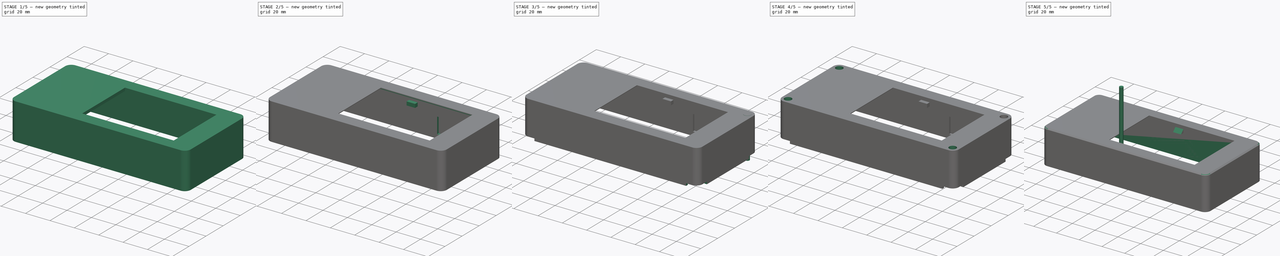
[diagram: build sequence overview — one tinted view per stage of 5, left to right]
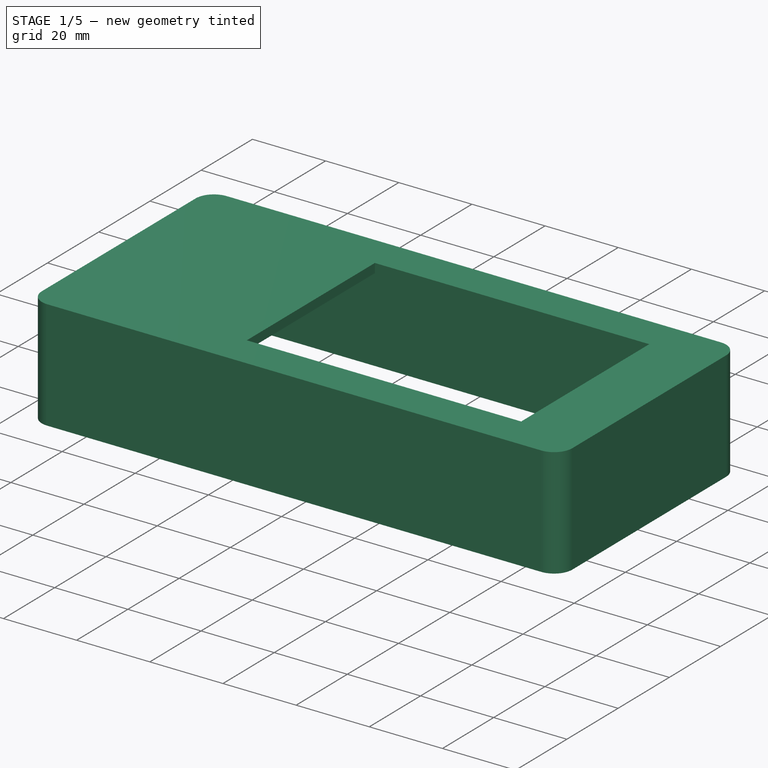
[diagram: stage 1 of 5 — iso view after this stage's code; geometry added in this stage tinted green]
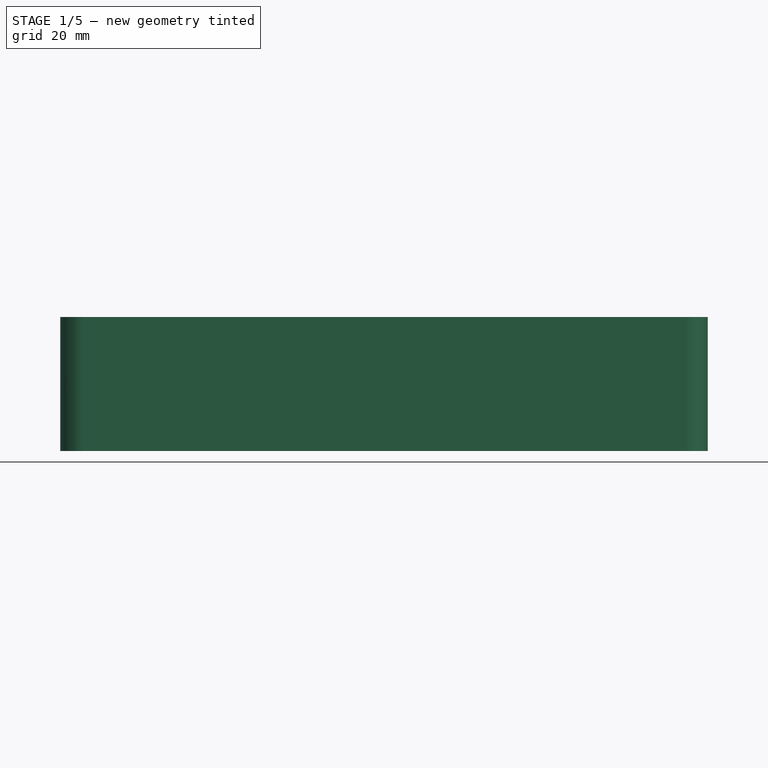
[diagram: stage 1 of 5 — front view after this stage's code; geometry added in this stage tinted green]
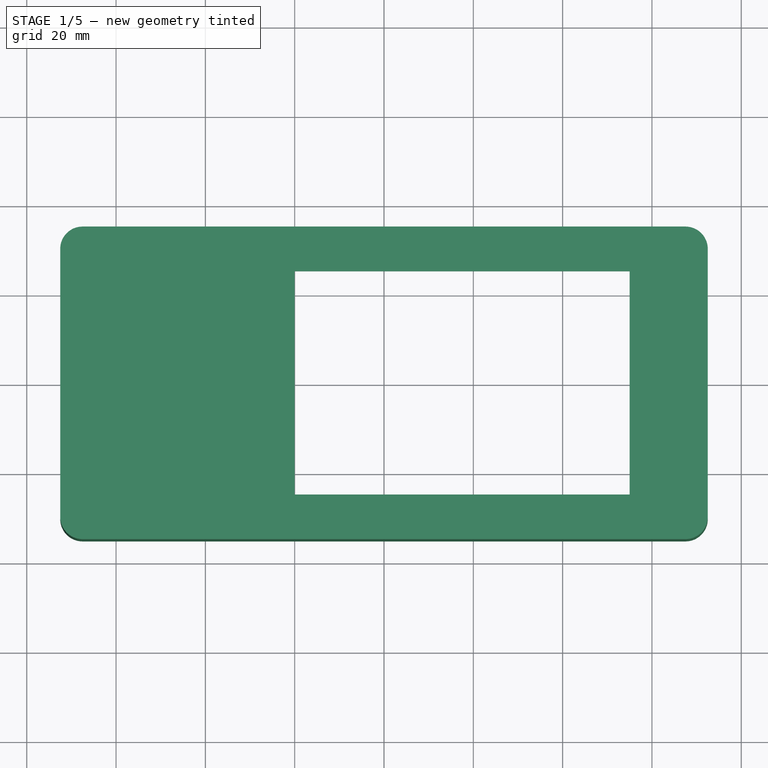
[diagram: stage 1 of 5 — top view after this stage's code; geometry added in this stage tinted green]
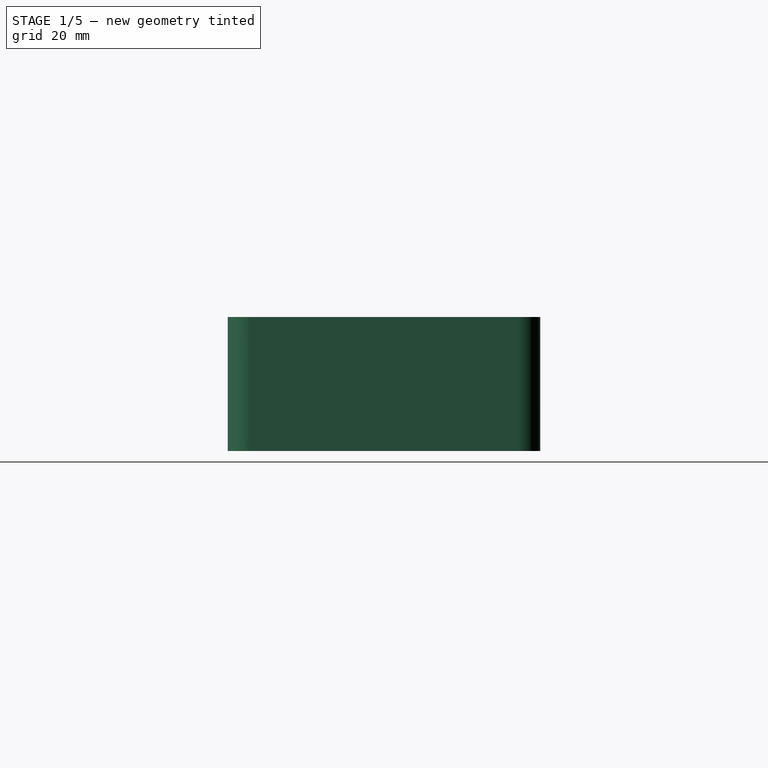
[diagram: stage 1 of 5 — right view after this stage's code; geometry added in this stage tinted green]
FCSTD DOCUMENT  (FreeCAD 0.16R6703 (Git))
Label: baroness
License: CC-BY 3.0
LicenseURL: http://creativecommons.org/licenses/by/3.0/
objects: Sketcher::SketchObject×12, PartDesign::Pocket×7, PartDesign::Pad×4, Part::FeaturePython×4, PartDesign::Chamfer×3, Part::Cylinder×1, PartDesign::Revolution×1, Part::MultiFuse×1, Part::Cut×1
note: 46 computed .brp shape members not serialized (recipe doc carries the construction recipe); baked Part::Feature solids carry a one-line shape summary decoded from their .brp

FEATURE [Sketcher::SketchObject] Sketch
  sketch-geometry (8):
    g0: LineSegment StartX=-67.5 StartY=-35 StartZ=0 EndX=67.5 EndY=-35 EndZ=0
    g1: LineSegment StartX=72.5 StartY=-30 StartZ=0 EndX=72.5 EndY=30 EndZ=0
    g2: LineSegment StartX=67.5 StartY=35 StartZ=0 EndX=-67.5 EndY=35 EndZ=0
    g3: LineSegment StartX=-72.5 StartY=30 StartZ=0 EndX=-72.5 EndY=-30 EndZ=0
    g4: ArcOfCircle CenterX=-67.5 CenterY=30 CenterZ=0 NormalX=0 NormalY=0 NormalZ=1 Radius=5 StartAngle=1.5708 EndAngle=3.14159
    g5: ArcOfCircle CenterX=-67.5 CenterY=-30 CenterZ=0 NormalX=0 NormalY=0 NormalZ=1 Radius=5 StartAngle=3.14159 EndAngle=4.71239
    g6: ArcOfCircle CenterX=67.5 CenterY=-30 CenterZ=0 NormalX=0 NormalY=0 NormalZ=1 Radius=5 StartAngle=4.71239 EndAngle=6.28319
    g7: ArcOfCircle CenterX=67.5 CenterY=30 CenterZ=0 NormalX=0 NormalY=0 NormalZ=1 Radius=5 StartAngle=0 EndAngle=1.5708
  constraints (19):
    c: Horizontal(g0)
    c: Horizontal(g2)
    c: Vertical(g1)
    c: Vertical(g3)
    c: Tangent(g2,g4)
    c: Tangent(g3,g4)
    c: Tangent(g0,g5)
    c: Tangent(g3,g5)
    c: Tangent(g0,g6)
    c: Tangent(g1,g6)
    c: Tangent(g1,g7)
    c: Tangent(g2,g7)
    c: Radius(g4) = 5
    c: Radius(g6) = 5
    c: Radius(g7) = 5
    c: DistanceY(g0,g2) = 70
    c: DistanceX(g3,g1) = 145
    c: Symmetric(g2,g0,g-1)
    c: Symmetric(g1,g3,g-2)
FEATURE [PartDesign::Pad] Pad
  Length = 30
  Length2 = 100
  Reversed = true
  Sketch = -> Sketch
  Type = 0
FEATURE [Sketcher::SketchObject] Sketch001
  Placement = pos=(0,0,-30) rot=(1,0,0;3.14159rad)
  Support = -> Pad [Face10]
  sketch-geometry (4):
    g0: LineSegment StartX=-20 StartY=25 StartZ=0 EndX=55 EndY=25 EndZ=0
    g1: LineSegment StartX=55 StartY=25 StartZ=0 EndX=55 EndY=-25 EndZ=0
    g2: LineSegment StartX=55 StartY=-25 StartZ=0 EndX=-20 EndY=-25 EndZ=0
    g3: LineSegment StartX=-20 StartY=-25 StartZ=0 EndX=-20 EndY=25 EndZ=0
  constraints (12):
    c: Coincident(g0,g1)
    c: Coincident(g1,g2)
    c: Coincident(g2,g3)
    c: Coincident(g3,g0)
    c: Horizontal(g0)
    c: Horizontal(g2)
    c: Vertical(g1)
    c: Vertical(g3)
    c: DistanceY(g3) = 50
    c: DistanceX(g0) = 75
    c: DistanceX(g-1,g2) = -20
    c: Symmetric(g2,g0,g-1)
FEATURE [PartDesign::Pocket] Pocket  label="inner_d"
  Length = 5
  Sketch = -> Sketch001
  Type = 1
FEATURE [Sketcher::SketchObject] Sketch002
  ExternalGeometry = -> [Pocket]
  Placement = pos=(0,0,-30) rot=(1,0,0;3.14159rad)
  Support = -> Pocket [Face5]
  sketch-geometry (9):
    g0: LineSegment StartX=72.5 StartY=-28 StartZ=0 EndX=72.5 EndY=-28 EndZ=0
    g1: LineSegment StartX=-67.5 StartY=33 StartZ=0 EndX=67.5 EndY=33 EndZ=0
    g2: LineSegment StartX=70.5 StartY=30 StartZ=0 EndX=70.5 EndY=-30 EndZ=0
    g3: LineSegment StartX=67.5 StartY=-33 StartZ=0 EndX=-67.5 EndY=-33 EndZ=0
    g4: LineSegment StartX=-70.5 StartY=-30 StartZ=0 EndX=-70.5 EndY=30 EndZ=0
    g5: ArcOfCircle CenterX=-67.5 CenterY=30 CenterZ=0 NormalX=0 NormalY=0 NormalZ=1 Radius=3 StartAngle=1.5708 EndAngle=3.14159
    g6: ArcOfCircle CenterX=67.5 CenterY=30 CenterZ=0 NormalX=0 NormalY=0 NormalZ=1 Radius=3 StartAngle=0 EndAngle=1.5708
    g7: ArcOfCircle CenterX=67.5 CenterY=-30 CenterZ=0 NormalX=0 NormalY=0 NormalZ=1 Radius=3 StartAngle=4.71239 EndAngle=6.28319
    g8: ArcOfCircle CenterX=-67.5 CenterY=-30 CenterZ=0 NormalX=0 NormalY=0 NormalZ=1 Radius=3 StartAngle=3.14159 EndAngle=4.71239
  constraints (22):
    c: Horizontal(g0)
    c: DistanceY(g0,g-6) = -2
    c: DistanceX(g0,g-6) = 0
    c: DistanceX(g0,g-4) = 0
    c: Horizontal(g1)
    c: Horizontal(g3)
    c: Vertical(g2)
    c: Vertical(g4)
    c: Tangent(g1,g5)
    c: Tangent(g4,g5)
    c: Tangent(g1,g6)
    c: Tangent(g2,g6)
    c: Tangent(g2,g7)
    c: Tangent(g3,g7)
    c: Tangent(g3,g8)
    c: Tangent(g4,g8)
    c: Radius(g5) = 3
    c: Radius(g6) = 3
    c: Radius(g8) = 3
    c: Radius(g7) = 3
    c: Coincident(g-5,g5)
    c: Coincident(g7,g-6)
FEATURE [PartDesign::Pocket] Pocket001  label="big_hole"
  Length = 27.5
  Sketch = -> Sketch002
  Type = 0
  UpToFace = -> Pocket [Face4]
FEATURE [Sketcher::SketchObject] Sketch003
  Placement = pos=(0,0,-2.5) rot=(1,0,0;3.14159rad)
  Support = -> Pocket001 [Face23]
  sketch-geometry (4):
    g0: LineSegment StartX=-64 StartY=28 StartZ=0 EndX=-24 EndY=28 EndZ=0
    g1: LineSegment StartX=-24 StartY=28 StartZ=0 EndX=-24 EndY=-32.5 EndZ=0
    g2: LineSegment StartX=-24 StartY=-32.5 StartZ=0 EndX=-64 EndY=-32.5 EndZ=0
    g3: LineSegment StartX=-64 StartY=-32.5 StartZ=0 EndX=-64 EndY=28 EndZ=0
  constraints (12):
    c: Coincident(g0,g1)
    c: Coincident(g1,g2)
    c: Coincident(g2,g3)
    c: Coincident(g3,g0)
    c: Horizontal(g0)
    c: Horizontal(g2)
    c: Vertical(g1)
    c: Vertical(g3)
    c: DistanceX(g0,g0) = 40
    c: DistanceY(g2,g0) = 60.5
    c: DistanceX(g-1,g0) = -64
    c: DistanceY(g-1,g0) = 28
FEATURE [PartDesign::Pocket] Pocket002  label="rfid_d"
  Length = 2.5
  Midplane = true
  Sketch = -> Sketch003
  Type = 0
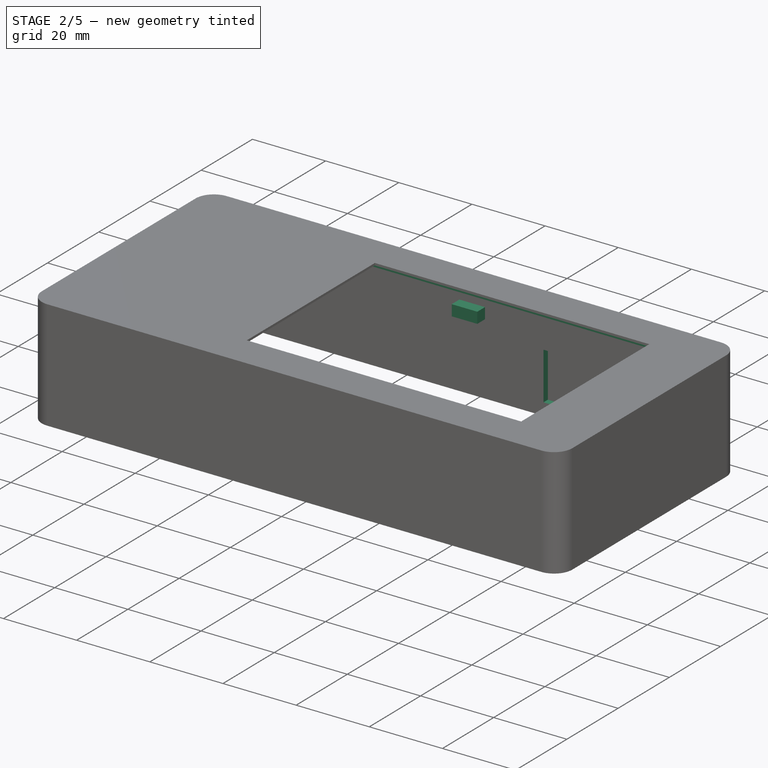
[diagram: stage 2 of 5 — iso view after this stage's code; geometry added in this stage tinted green]
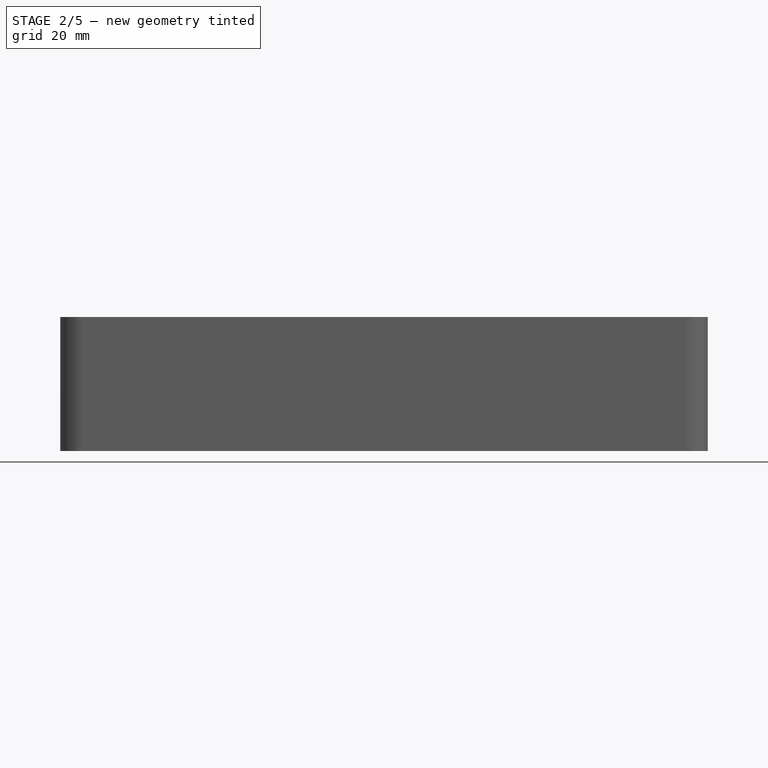
[diagram: stage 2 of 5 — front view after this stage's code; geometry added in this stage tinted green]
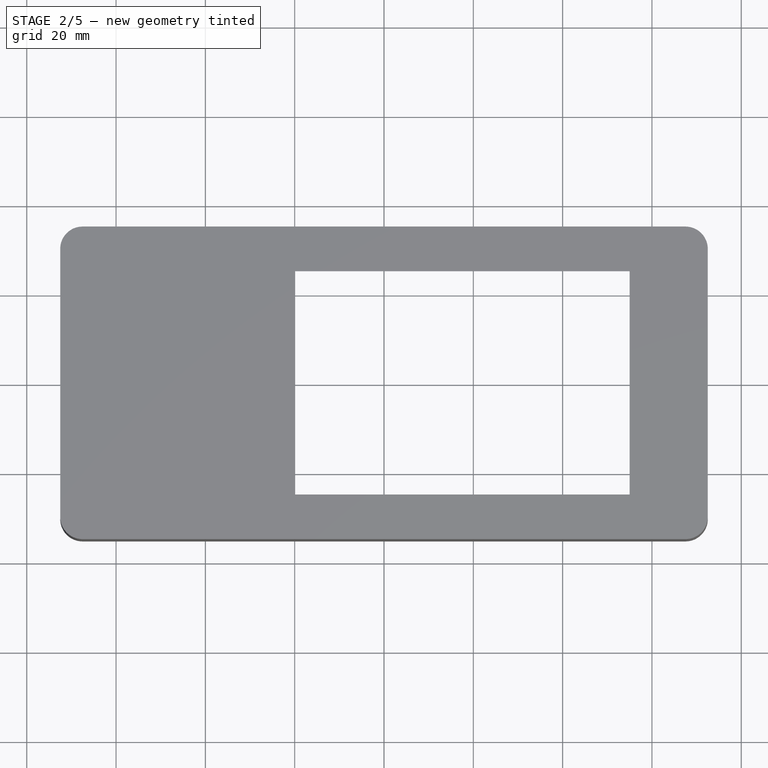
[diagram: stage 2 of 5 — top view after this stage's code; geometry added in this stage tinted green]
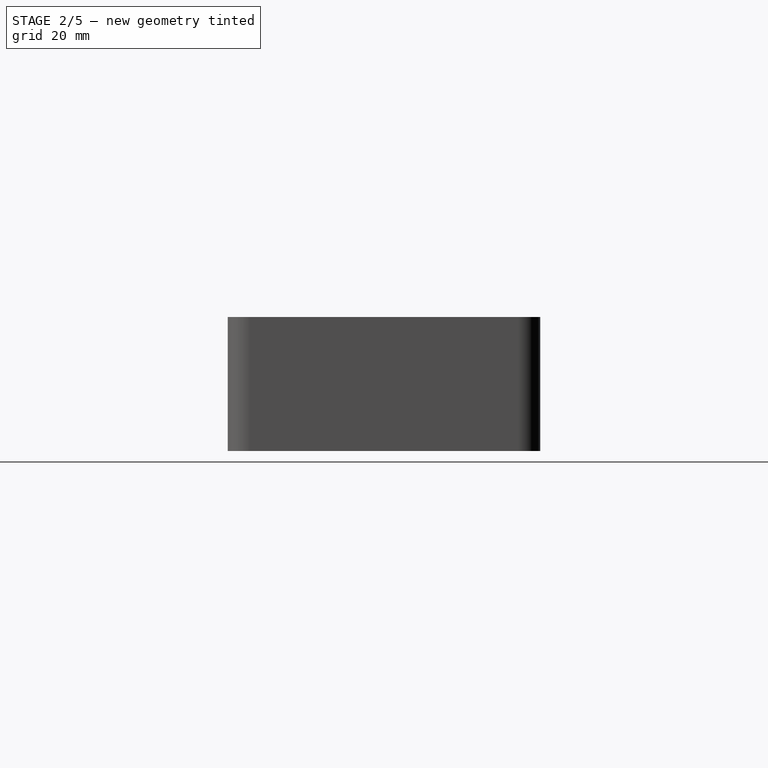
[diagram: stage 2 of 5 — right view after this stage's code; geometry added in this stage tinted green]
FEATURE [Sketcher::SketchObject] Sketch006
  ExternalGeometry = -> [Pocket002]
  Placement = pos=(0,0,-2.5) rot=(1,0,0;3.14159rad)
  Support = -> Pocket002 [Face23]
  sketch-geometry (4):
    g0: LineSegment StartX=-22.7 StartY=-27.6 StartZ=0 EndX=63 EndY=-27.6 EndZ=0
    g1: LineSegment StartX=63 StartY=-27.6 StartZ=0 EndX=63 EndY=27.6 EndZ=0
    g2: LineSegment StartX=63 StartY=27.6 StartZ=0 EndX=-22.7 EndY=27.6 EndZ=0
    g3: LineSegment StartX=-22.7 StartY=27.6 StartZ=0 EndX=-22.7 EndY=-27.6 EndZ=0
  constraints (12):
    c: Coincident(g0,g1)
    c: Coincident(g0,g3)
    c: Coincident(g1,g2)
    c: Coincident(g2,g3)
    c: Horizontal(g2)
    c: Horizontal(g0)
    c: Vertical(g3)
    c: Vertical(g1)
    c: DistanceY(g-8,g2) = 2.6
    c: DistanceY(g0,g-9) = 2.6
    c: DistanceX(g2,g-8) = 2.7
    c: DistanceX(g-10,g1) = 8
FEATURE [PartDesign::Pocket] Pocket005  label="display-senkung"
  Length = 1.9
  Sketch = -> Sketch006
  Type = 0
FEATURE [Sketcher::SketchObject] Sketch008
  ExternalGeometry = -> [Pocket005]
  Placement = pos=(0,33,0) rot=(1,0,0;1.5708rad)
  Support = -> Pocket005 [Face18]
  sketch-geometry (4):
    g0: LineSegment StartX=46.9 StartY=-19.1 StartZ=0 EndX=57.9 EndY=-19.1 EndZ=0
    g1: LineSegment StartX=57.9 StartY=-26.1 StartZ=0 EndX=46.9 EndY=-26.1 EndZ=0
    g2: LineSegment StartX=46.9 StartY=-26.1 StartZ=0 EndX=46.9 EndY=-19.1 EndZ=0
    g3: LineSegment StartX=57.9 StartY=-19.1 StartZ=0 EndX=57.9 EndY=-26.1 EndZ=0
  constraints (12):
    c: Coincident(g0,g2)
    c: Coincident(g0,g3)
    c: Coincident(g1,g2)
    c: Coincident(g1,g3)
    c: DistanceX(g1,g1) = 11
    c: DistanceY(g1,g0) = 7
    c: DistanceX(g0,g-3) = 5.1
    c: DistanceY(g0,g-3) = 18.5
    c: Vertical(g3)
    c: Vertical(g2)
    c: Horizontal(g0)
    c: Horizontal(g1)
FEATURE [PartDesign::Pocket] Pocket006
  Length = 4
  Sketch = -> Sketch008
  Type = 0
FEATURE [Sketcher::SketchObject] Sketch009
  ExternalGeometry = -> [Pocket006]
  Placement = pos=(0,33,0) rot=(1,0,0;1.5708rad)
  Support = -> Pocket006 [Face18]
  sketch-geometry (4):
    g0: LineSegment StartX=41.5 StartY=-13.65 StartZ=0 EndX=20.5 EndY=-13.65 EndZ=0
    g1: LineSegment StartX=20.5 StartY=-13.65 StartZ=0 EndX=20.5 EndY=-26.65 EndZ=0
    g2: LineSegment StartX=20.5 StartY=-26.65 StartZ=0 EndX=41.5 EndY=-26.65 EndZ=0
    g3: LineSegment StartX=41.5 StartY=-26.65 StartZ=0 EndX=41.5 EndY=-13.65 EndZ=0
  constraints (12):
    c: Horizontal(g2)
    c: Horizontal(g0)
    c: Vertical(g1)
    c: Vertical(g3)
    c: DistanceX(g0,g-3) = 21.5
    c: DistanceY(g0,g-3) = 11.15
    c: DistanceX(g2,g2) = 21
    c: DistanceY(g3,g3) = 13
    c: Coincident(g0,g1)
    c: Coincident(g1,g2)
    c: Coincident(g2,g3)
    c: Coincident(g0,g3)
FEATURE [PartDesign::Pocket] Pocket007
  Length = 1.7
  Sketch = -> Sketch009
  Type = 0
FEATURE [Sketcher::SketchObject] Sketch010
  Placement = pos=(0,33,0) rot=(1,0,0;1.5708rad)
  Support = -> Pocket007 [Face18]
  sketch-geometry (8):
    g0: LineSegment StartX=-2.5 StartY=-7.4 StartZ=0 EndX=4.5 EndY=-7.4 EndZ=0
    g1: LineSegment StartX=4.5 StartY=-7.4 StartZ=0 EndX=4.5 EndY=-10.4 EndZ=0
    g2: LineSegment StartX=4.5 StartY=-10.4 StartZ=0 EndX=-2.5 EndY=-10.4 EndZ=0
    g3: LineSegment StartX=-2.5 StartY=-10.4 StartZ=0 EndX=-2.5 EndY=-7.4 EndZ=0
    g4: LineSegment StartX=55.5 StartY=-7.4 StartZ=0 EndX=62.5 EndY=-7.4 EndZ=0
    g5: LineSegment StartX=62.5 StartY=-7.4 StartZ=0 EndX=62.5 EndY=-10.4 EndZ=0
    g6: LineSegment StartX=62.5 StartY=-10.4 StartZ=0 EndX=55.5 EndY=-10.4 EndZ=0
    g7: LineSegment StartX=55.5 StartY=-10.4 StartZ=0 EndX=55.5 EndY=-7.4 EndZ=0
  constraints (23):
    c: Coincident(g2,g3)
    c: Coincident(g1,g2)
    c: Coincident(g0,g1)
    c: Coincident(g5,g6)
    c: Coincident(g6,g7)
    c: Coincident(g4,g5)
    c: Coincident(g4,g7)
    c: Horizontal(g2)
    c: Horizontal(g0)
    c: Horizontal(g6)
    c: Horizontal(g4)
    c: Vertical(g3)
    c: Vertical(g1)
    c: Vertical(g7)
    c: Vertical(g5)
    c: DistanceY(g0,g-1) = 7.4
    c: DistanceX(g-1,g0) = 4.5
    c: DistanceY(g0,g4) = 0
    c: DistanceX(g0,g4) = 58
    c: Equal(g5,g1)
    c: Equal(g2,g6)
    c: DistanceX(g6,g6) = 7
    c: DistanceY(g5,g5) = 3
FEATURE [PartDesign::Pad] Pad001
  Length = 3
  Length2 = 100
  Sketch = -> Sketch010
  Type = 0
FEATURE [Sketcher::SketchObject] Sketch011
  Placement = pos=(0,-33,0) rot=(0,0.707107,0.707107;3.14159rad)
  Support = -> Pad001 [Face22]
  sketch-geometry (8):
    g0: LineSegment StartX=-62.5 StartY=-7.4 StartZ=0 EndX=-55.5 EndY=-7.4 EndZ=0
    g1: LineSegment StartX=-55.5 StartY=-7.4 StartZ=0 EndX=-55.5 EndY=-10.4 EndZ=0
    g2: LineSegment StartX=-55.5 StartY=-10.4 StartZ=0 EndX=-62.5 EndY=-10.4 EndZ=0
    g3: LineSegment StartX=-62.5 StartY=-10.4 StartZ=0 EndX=-62.5 EndY=-7.4 EndZ=0
    g4: LineSegment StartX=-4.5 StartY=-7.4 StartZ=0 EndX=2.5 EndY=-7.4 EndZ=0
    g5: LineSegment StartX=2.5 StartY=-7.4 StartZ=0 EndX=2.5 EndY=-10.4 EndZ=0
    g6: LineSegment StartX=2.5 StartY=-10.4 StartZ=0 EndX=-4.5 EndY=-10.4 EndZ=0
    g7: LineSegment StartX=-4.5 StartY=-10.4 StartZ=0 EndX=-4.5 EndY=-7.4 EndZ=0
  constraints (19):
    c: Coincident(g4,g5)
    c: Coincident(g5,g6)
    c: Coincident(g6,g7)
    c: Coincident(g4,g7)
    c: Coincident(g1,g2)
    c: Coincident(g0,g1)
    c: Coincident(g2,g3)
    c: Coincident(g0,g3)
    c: Horizontal(g2)
    c: Horizontal(g0)
    c: Horizontal(g6)
    c: Horizontal(g4)
    c: Vertical(g3)
    c: Vertical(g1)
    c: Vertical(g7)
    c: Vertical(g5)
    c: DistanceY(g4,g-1) = 7.4
    c: DistanceX(g-1,g4) = 2.5
    c: DistanceX(g0,g4) = 58
FEATURE [PartDesign::Pad] Pad002
  Length = 3
  Length2 = 100
  Sketch = -> Sketch011
  Type = 0
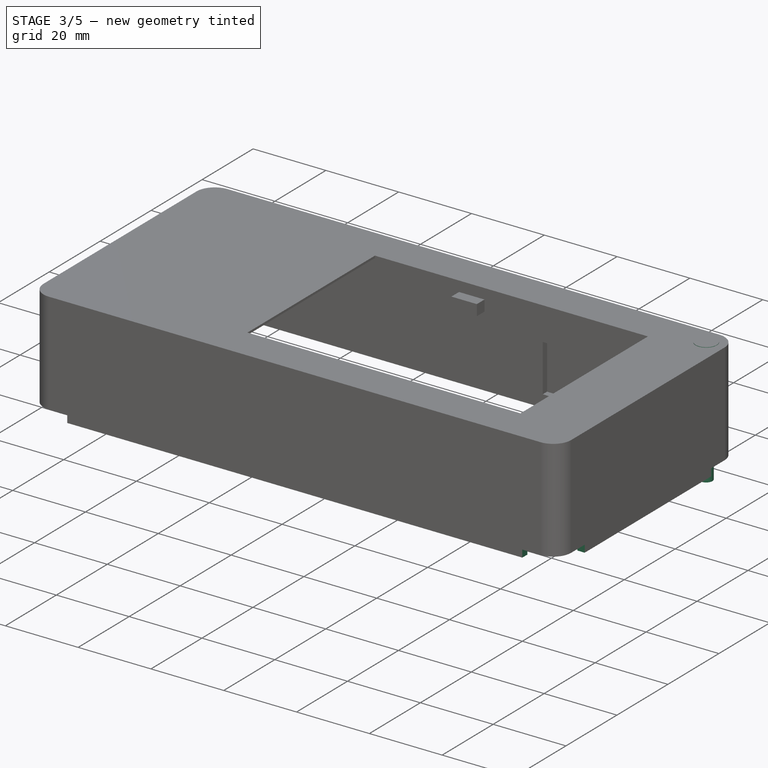
[diagram: stage 3 of 5 — iso view after this stage's code; geometry added in this stage tinted green]
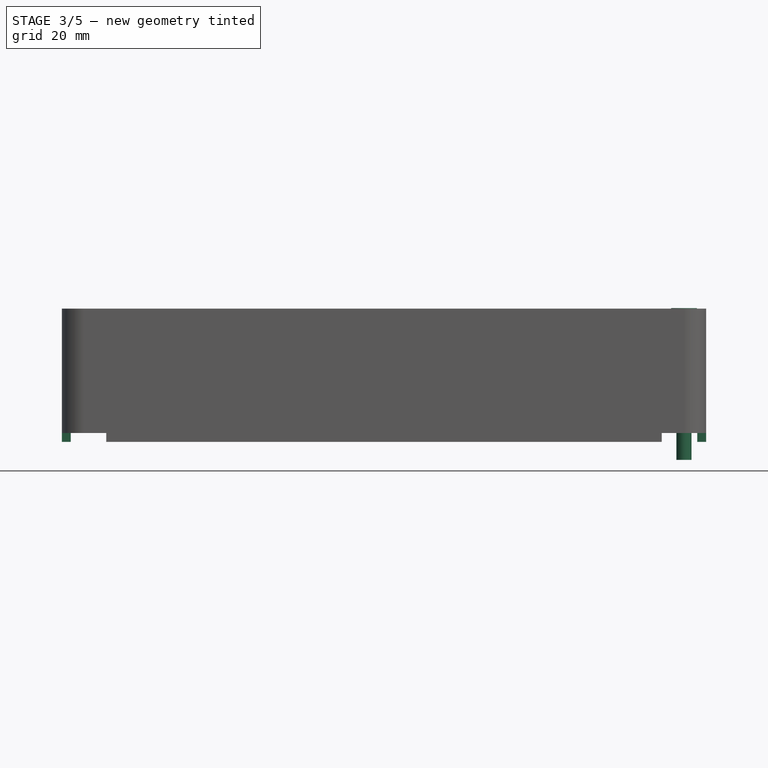
[diagram: stage 3 of 5 — front view after this stage's code; geometry added in this stage tinted green]
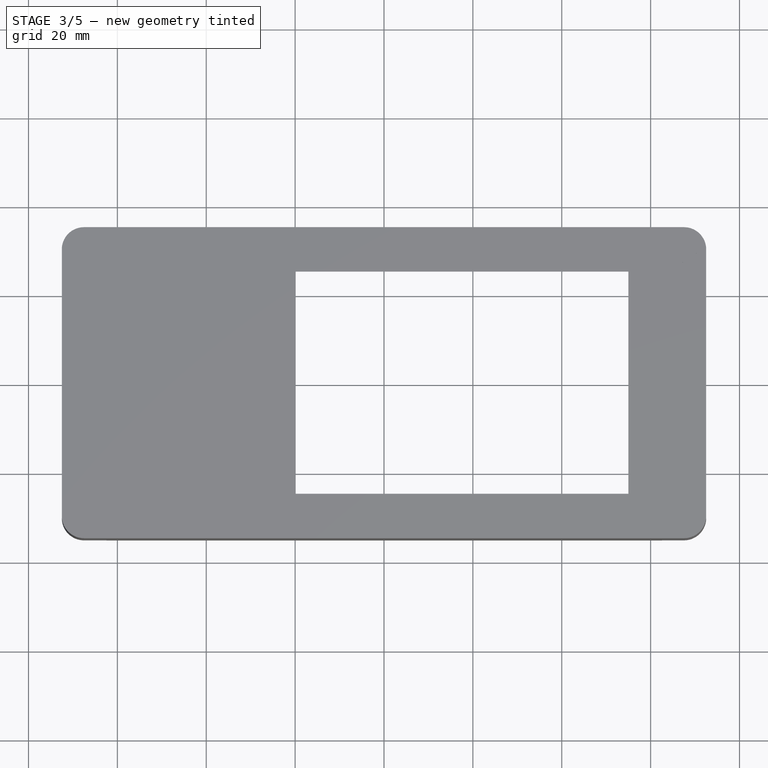
[diagram: stage 3 of 5 — top view after this stage's code; geometry added in this stage tinted green]
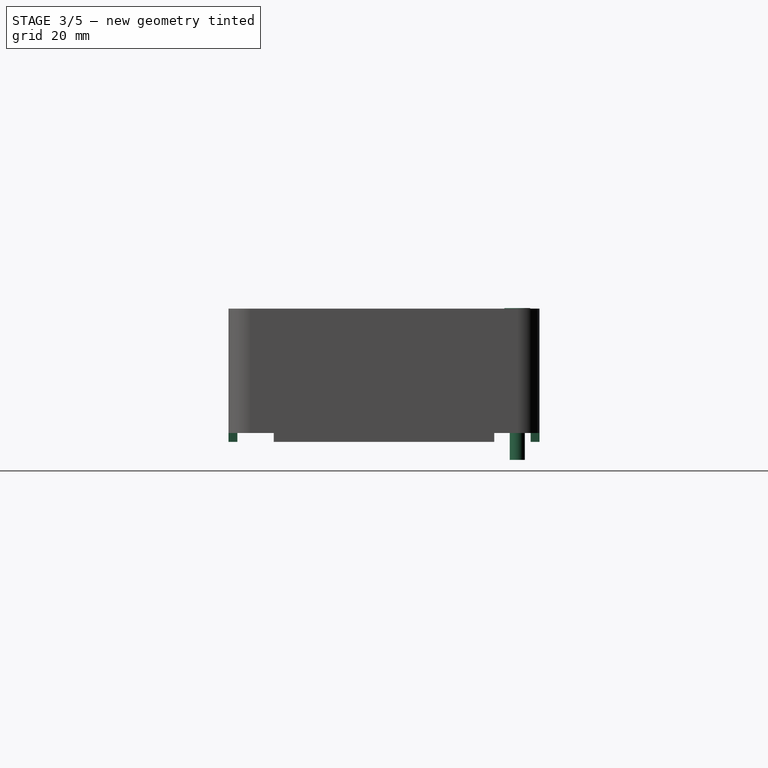
[diagram: stage 3 of 5 — right view after this stage's code; geometry added in this stage tinted green]
FEATURE [Sketcher::SketchObject] Sketch007
  Placement = pos=(0,0,0) rot=(1,0,0;1.5708rad)
  sketch-geometry (6):
    g0: LineSegment StartX=0 StartY=-34.05 StartZ=0 EndX=0 EndY=0.1 EndZ=0
    g1: LineSegment StartX=-2.9 StartY=-3.05 StartZ=0 EndX=-2.9 EndY=0.1 EndZ=0
    g2: LineSegment StartX=-2.9 StartY=0.1 StartZ=0 EndX=0 EndY=0.1 EndZ=0
    g3: LineSegment StartX=-1.7 StartY=-3.05 StartZ=0 EndX=-1.7 EndY=-34.05 EndZ=0
    g4: LineSegment StartX=-1.7 StartY=-34.05 StartZ=0 EndX=0 EndY=-34.05 EndZ=0
    g5: LineSegment StartX=-2.9 StartY=-3.05 StartZ=0 EndX=-1.7 EndY=-3.05 EndZ=0
  constraints (18):
    c: Coincident(g1,g2)
    c: Coincident(g3,g4)
    c: Coincident(g4,g0)
    c: Coincident(g5,g1)
    c: Coincident(g5,g3)
    c: Coincident(g0,g2)
    c: DistanceY(g1,g1) = 3.15
    c: DistanceX(g1,g0) = 2.9
    c: DistanceX(g3,g0) = 1.7
    c: Vertical(g3)
    c: Vertical(g0)
    c: Horizontal(g2)
    c: Horizontal(g5)
    c: Vertical(g1)
    c: Horizontal(g4)
    c: DistanceY(g3,g3) = 31
    c: DistanceY(g-1,g0) = 0.1
    c: DistanceX(g0,g-1) = 0
FEATURE [PartDesign::Revolution] Revolution
  Angle = 360
  Axis = (0,0,1)
  Base = (0,0,0)
  Placement = pos=(0,0,0) rot=(1,0,0;1.5708rad)
  ReferenceAxis = -> Sketch007 [V_Axis]
  Sketch = -> Sketch007
FEATURE [Part::FeaturePython] Clone003  label="Clone of Revolution003"  # Draft clone (typed FeaturePython)
  Objects = -> [Revolution]
  Placement = pos=(67.5,30,0) rot=(1,0,0;1.5708rad)
  Scale = (1,1,1)
FEATURE [Sketcher::SketchObject] Sketch012
  Placement = pos=(0,0,-30) rot=(1,0,0;3.14159rad)
  Support = -> Pad002 [Face5]
  sketch-geometry (16):
    g0: LineSegment StartX=-82.5 StartY=44.8 StartZ=0 EndX=-62.5 EndY=44.8 EndZ=0
    g1: LineSegment StartX=-62.5 StartY=44.8 StartZ=0 EndX=-62.5 EndY=24.8 EndZ=0
    g2: LineSegment StartX=-62.5 StartY=24.8 StartZ=0 EndX=-82.5 EndY=24.8 EndZ=0
    g3: LineSegment StartX=-82.5 StartY=24.8 StartZ=0 EndX=-82.5 EndY=44.8 EndZ=0
    g4: LineSegment StartX=62.5 StartY=44.8 StartZ=0 EndX=82.5 EndY=44.8 EndZ=0
    g5: LineSegment StartX=82.5 StartY=44.8 StartZ=0 EndX=82.5 EndY=24.8 EndZ=0
    g6: LineSegment StartX=82.5 StartY=24.8 StartZ=0 EndX=62.5 EndY=24.8 EndZ=0
    g7: LineSegment StartX=62.5 StartY=24.8 StartZ=0 EndX=62.5 EndY=44.8 EndZ=0
    g8: LineSegment StartX=82.5 StartY=-44.8 StartZ=0 EndX=62.5 EndY=-44.8 EndZ=0
    g9: LineSegment StartX=62.5 StartY=-44.8 StartZ=0 EndX=62.5 EndY=-24.8 EndZ=0
    g10: LineSegment StartX=62.5 StartY=-24.8 StartZ=0 EndX=82.5 EndY=-24.8 EndZ=0
    g11: LineSegment StartX=82.5 StartY=-24.8 StartZ=0 EndX=82.5 EndY=-44.8 EndZ=0
    g12: LineSegment StartX=-62.1 StartY=-44.8 StartZ=0 EndX=-82.1 EndY=-44.8 EndZ=0
    g13: LineSegment StartX=-82.1 StartY=-44.8 StartZ=0 EndX=-82.1 EndY=-24.8 EndZ=0
    g14: LineSegment StartX=-82.1 StartY=-24.8 StartZ=0 EndX=-62.1 EndY=-24.8 EndZ=0
    g15: LineSegment StartX=-62.1 StartY=-24.8 StartZ=0 EndX=-62.1 EndY=-44.8 EndZ=0
  constraints (46):
    c: Coincident(g0,g1)
    c: Coincident(g1,g2)
    c: Coincident(g2,g3)
    c: Coincident(g3,g0)
    c: Horizontal(g0)
    c: Horizontal(g2)
    c: Vertical(g1)
    c: Vertical(g3)
    c: Coincident(g4,g5)
    c: Coincident(g5,g6)
    c: Coincident(g6,g7)
    c: Coincident(g7,g4)
    c: Horizontal(g4)
    c: Horizontal(g6)
    c: Vertical(g5)
    c: Vertical(g7)
    c: Coincident(g8,g9)
    c: Coincident(g9,g10)
    c: Coincident(g10,g11)
    c: Coincident(g11,g8)
    c: Horizontal(g8)
    c: Horizontal(g10)
    c: Vertical(g9)
    c: Vertical(g11)
    c: Coincident(g12,g13)
    c: Coincident(g13,g14)
    c: Coincident(g14,g15)
    c: Coincident(g15,g12)
    c: Horizontal(g12)
    c: Horizontal(g14)
    c: Vertical(g13)
    c: Vertical(g15)
    c: DistanceX(g0,g4) = 125
    c: DistanceY(g10,g5) = 49.6
    c: Symmetric(g0,g4,g-2)
    c: Symmetric(g6,g9,g-1)
    c: Equal(g1,g7)
    c: Equal(g7,g9)
    c: Equal(g9,g10)
    c: Equal(g10,g6)
    c: Equal(g6,g2)
    c: Equal(g2,g14)
    c: Equal(g14,g15)
    c: DistanceX(g8,g8) = 20
    c: DistanceY(g14,g1) = 49.6
    c: DistanceX(g14,g9) = 124.6
FEATURE [PartDesign::Pocket] Pocket008
  Length = 2
  Sketch = -> Sketch012
  Type = 0
FEATURE [Sketcher::SketchObject] Sketch013
  Placement = pos=(0,0,-2.5) rot=(1,0,0;3.14159rad)
  Support = -> Pocket008 [Face41]
  sketch-geometry (24):
    g0: LineSegment StartX=-64 StartY=28 StartZ=0 EndX=-64 EndY=25.5 EndZ=0
    g1: LineSegment StartX=-64 StartY=25.5 StartZ=0 EndX=-71.5 EndY=25.5 EndZ=0
    g2: LineSegment StartX=-71.5 StartY=25.5 StartZ=0 EndX=-71.5 EndY=30 EndZ=0
    g3: LineSegment StartX=-67.5 StartY=34 StartZ=0 EndX=-63 EndY=34 EndZ=0
    g4: LineSegment StartX=-63 StartY=34 StartZ=0 EndX=-63 EndY=28 EndZ=0
    g5: LineSegment StartX=-63 StartY=28 StartZ=0 EndX=-64 EndY=28 EndZ=0
    g6: LineSegment StartX=-64 StartY=-32.5 StartZ=0 EndX=-63 EndY=-32.5 EndZ=0
    g7: LineSegment StartX=-63 StartY=-32.5 StartZ=0 EndX=-63 EndY=-34 EndZ=0
    g8: LineSegment StartX=-63 StartY=-34 StartZ=0 EndX=-67.5 EndY=-34 EndZ=0
    g9: LineSegment StartX=-71.5 StartY=-30 StartZ=0 EndX=-71.5 EndY=-25.5 EndZ=0
    g10: LineSegment StartX=-64 StartY=-25.5 StartZ=0 EndX=-64 EndY=-32.5 EndZ=0
    g11: LineSegment StartX=67.5 StartY=34 StartZ=0 EndX=64 EndY=34 EndZ=0
    g12: LineSegment StartX=64 StartY=34 StartZ=0 EndX=64 EndY=25.5 EndZ=0
    g13: LineSegment StartX=64 StartY=25.5 StartZ=0 EndX=71.5 EndY=25.5 EndZ=0
    g14: LineSegment StartX=71.5 StartY=25.5 StartZ=0 EndX=71.5 EndY=30 EndZ=0
    g15: LineSegment StartX=67.5 StartY=-34 StartZ=0 EndX=64 EndY=-34 EndZ=0
    g16: LineSegment StartX=64 StartY=-34 StartZ=0 EndX=64 EndY=-25.5 EndZ=0
    g17: LineSegment StartX=64 StartY=-25.5 StartZ=0 EndX=71.5 EndY=-25.5 EndZ=0
    g18: LineSegment StartX=71.5 StartY=-25.5 StartZ=0 EndX=71.5 EndY=-30 EndZ=0
    g19: ArcOfCircle CenterX=-67.5 CenterY=30 CenterZ=0 NormalX=0 NormalY=0 NormalZ=1 Radius=4 StartAngle=1.5708 EndAngle=3.14159
    g20: ArcOfCircle CenterX=-67.5 CenterY=-30 CenterZ=0 NormalX=0 NormalY=0 NormalZ=1 Radius=4 StartAngle=3.14159 EndAngle=4.71239
    g21: ArcOfCircle CenterX=67.5 CenterY=-30 CenterZ=0 NormalX=0 NormalY=0 NormalZ=1 Radius=4 StartAngle=4.71239 EndAngle=6.28319
    g22: ArcOfCircle CenterX=67.5 CenterY=30 CenterZ=0 NormalX=0 NormalY=0 NormalZ=1 Radius=4 StartAngle=5.472e-09 EndAngle=1.5708
    g23: LineSegment StartX=-71.5 StartY=-25.5 StartZ=0 EndX=-64 EndY=-25.5 EndZ=0
  constraints (69):
    c: Coincident(g3,g19)
    c: Coincident(g2,g19)
    c: Vertical(g2)
    c: Horizontal(g3)
    c: Vertical(g0)
    c: Vertical(g4)
    c: Horizontal(g1)
    c: Horizontal(g5)
    c: Radius(g19) = 4
    c: Coincident(g9,g20)
    c: Coincident(g9,g23)
    c: Coincident(g10,g23)
    c: Coincident(g6,g7)
    c: Coincident(g7,g8)
    c: Coincident(g6,g10)
    c: Coincident(g8,g20)
    c: Vertical(g9)
    c: Vertical(g10)
    c: Vertical(g7)
    c: Horizontal(g8)
    c: Horizontal(g6)
    c: Horizontal(g23)
    c: Coincident(g17,g18)
    c: Coincident(g16,g17)
    c: Coincident(g15,g16)
    c: Vertical(g16)
    c: Vertical(g18)
    c: Horizontal(g17)
    c: Horizontal(g15)
    c: Coincident(g11,g12)
    c: Coincident(g13,g14)
    c: Coincident(g12,g13)
    c: Vertical(g14)
    c: Vertical(g12)
    c: Horizontal(g13)
    c: Horizontal(g11)
    c: Coincident(g4,g5)
    c: Coincident(g0,g1)
    c: Coincident(g1,g2)
    c: Coincident(g3,g4)
    c: Coincident(g0,g5)
    c: Symmetric(g19,g22,g-2)
    c: DistanceX(g19,g22) = 135
    c: Symmetric(g21,g22,g-1)
    c: DistanceY(g21,g22) = 60
    c: Symmetric(g19,g20,g-1)
    c: Equal(g20,g21)
    c: Equal(g21,g22)
    c: Equal(g22,g19)
    c: Symmetric(g10,g0,g-1)
    c: DistanceX(g23,g23) = 7.5
    c: DistanceX(g6,g6) = 1
    c: DistanceY(g7,g7) = 1.5
    c: DistanceY(g10,g10) = 7
    c: Coincident(g18,g21)
    c: DistanceX(g17,g17) = 7.5
    c: DistanceY(g16,g16) = 8.5
    c: Coincident(g11,g22)
    c: Coincident(g14,g22)
    c: Symmetric(g3,g7,g-1)
    c: DistanceY(g4,g4) = 6
    c: Symmetric(g13,g1,g-2)
    c: Symmetric(g11,g15,g-1)
    c: Coincident(g15,g21)
    c: Symmetric(g9,g2,g-1)
    c: DistanceX(g19,g3) = 0
    c: DistanceX(g11,g22) = 0
    c: DistanceY(g19,g2) = 0
    c: DistanceY(g18,g21) = 0
FEATURE [PartDesign::Pad] Pad003
  Length = 3
  Length2 = 100
  Sketch = -> Sketch013
  Type = 0
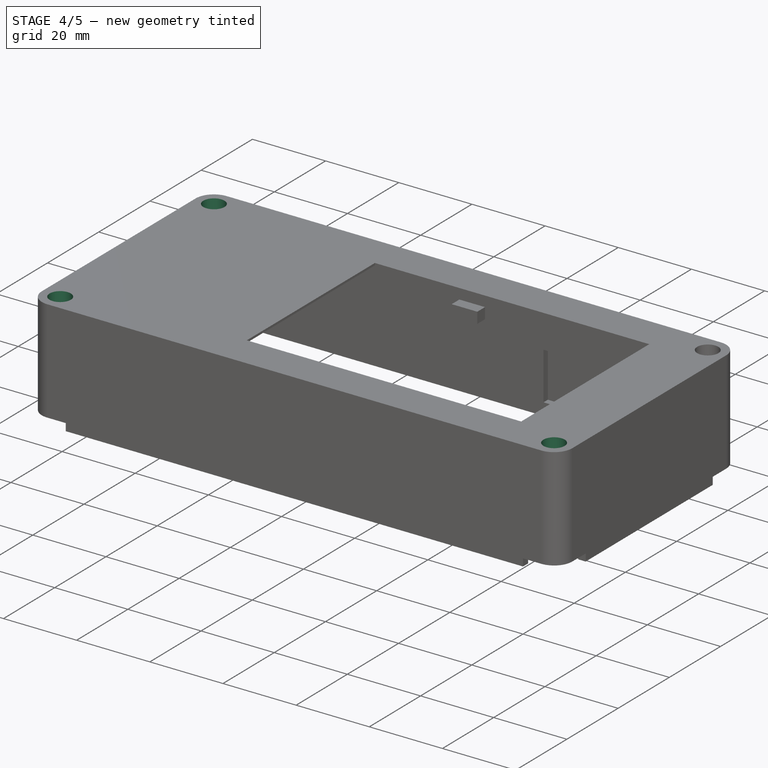
[diagram: stage 4 of 5 — iso view after this stage's code; geometry added in this stage tinted green]
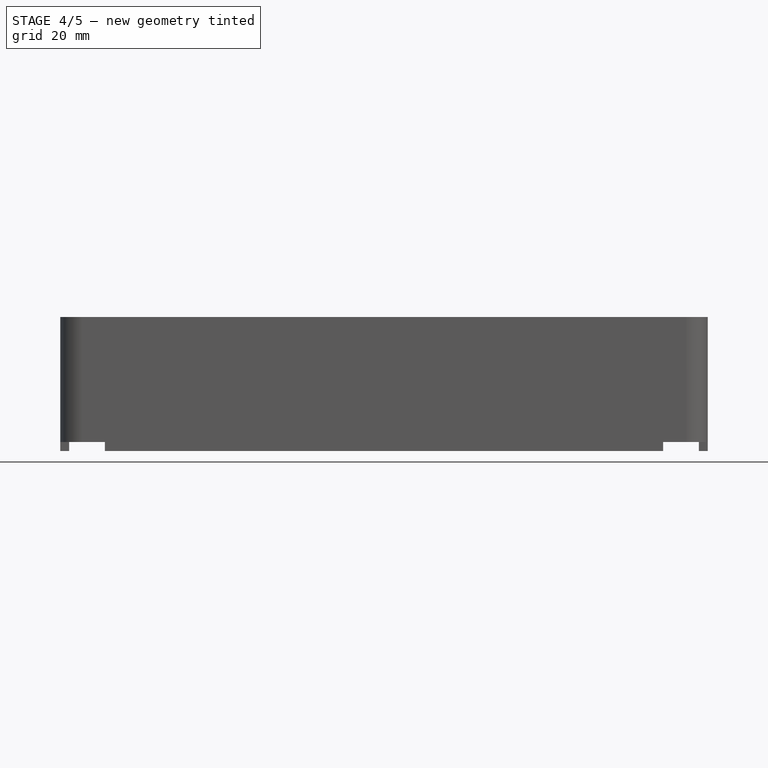
[diagram: stage 4 of 5 — front view after this stage's code; geometry added in this stage tinted green]
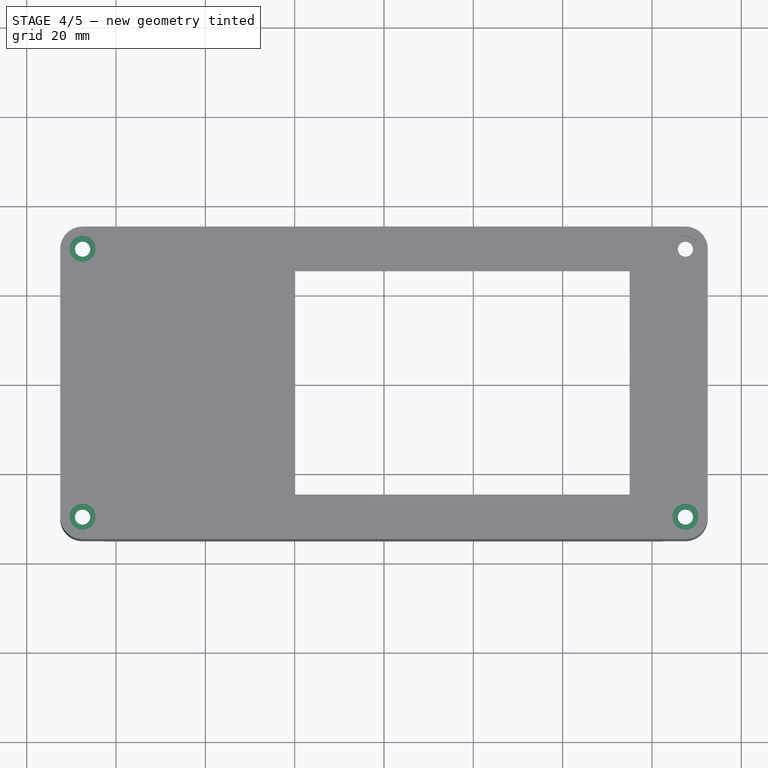
[diagram: stage 4 of 5 — top view after this stage's code; geometry added in this stage tinted green]
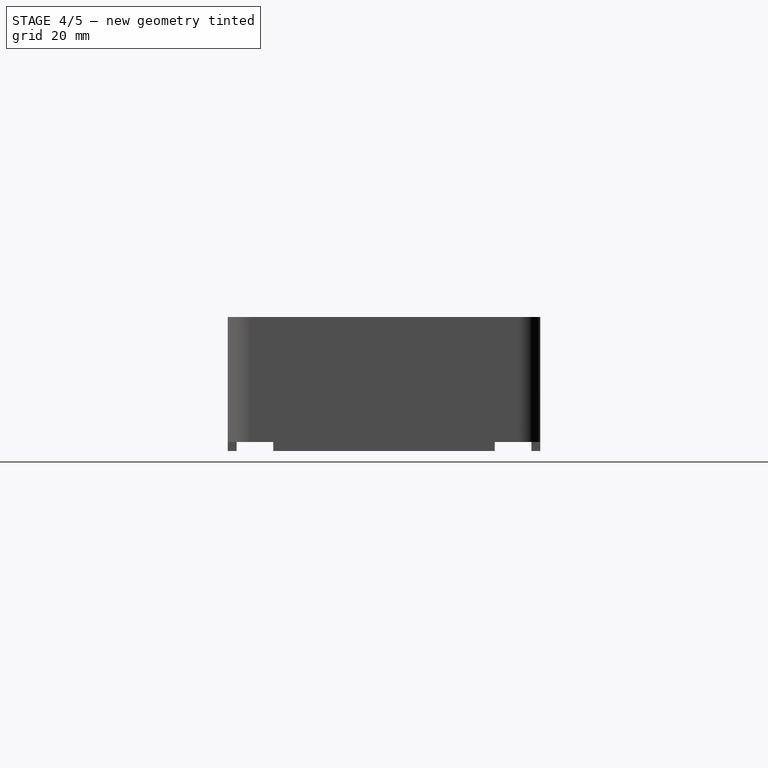
[diagram: stage 4 of 5 — right view after this stage's code; geometry added in this stage tinted green]
FEATURE [Part::FeaturePython] Clone  label="Clone of Revolution"  # Draft clone (typed FeaturePython)
  Objects = -> [Revolution]
  Placement = pos=(-67.5,30,0) rot=(1,0,0;1.5708rad)
  Scale = (1,1,1)
FEATURE [Part::FeaturePython] Clone001  label="Clone of Revolution001"  # Draft clone (typed FeaturePython)
  Objects = -> [Revolution]
  Placement = pos=(-67.5,-30,0) rot=(1,0,0;1.5708rad)
  Scale = (1,1,1)
FEATURE [Part::FeaturePython] Clone002  label="Clone of Revolution002"  # Draft clone (typed FeaturePython)
  Objects = -> [Revolution]
  Placement = pos=(67.5,-30,0) rot=(1,0,0;1.5708rad)
  Scale = (1,1,1)
FEATURE [Part::MultiFuse] Fusion001  label="Fusion_Schrauben"
  Shapes = -> [Clone,Clone001,Clone003,Clone002]
FEATURE [Part::Cut] Cut
  Base = -> Pad003
  Tool = -> Fusion001
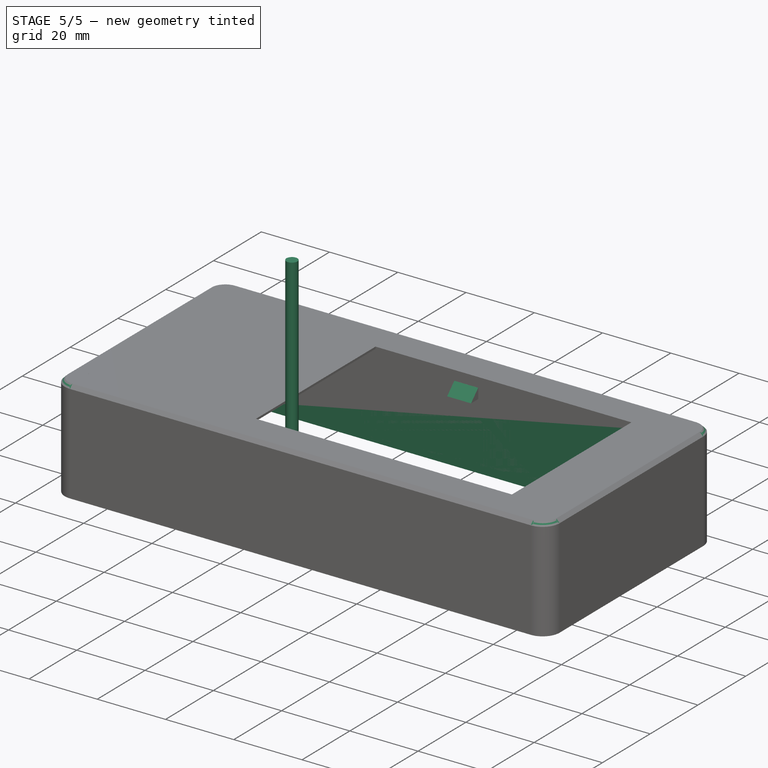
[diagram: stage 5 of 5 — iso view after this stage's code; geometry added in this stage tinted green]
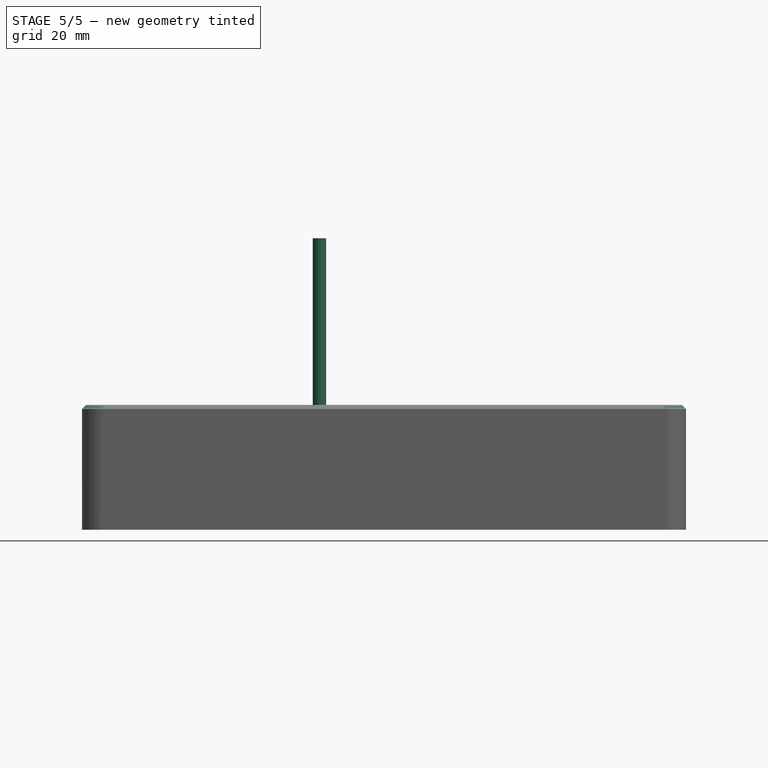
[diagram: stage 5 of 5 — front view after this stage's code; geometry added in this stage tinted green]
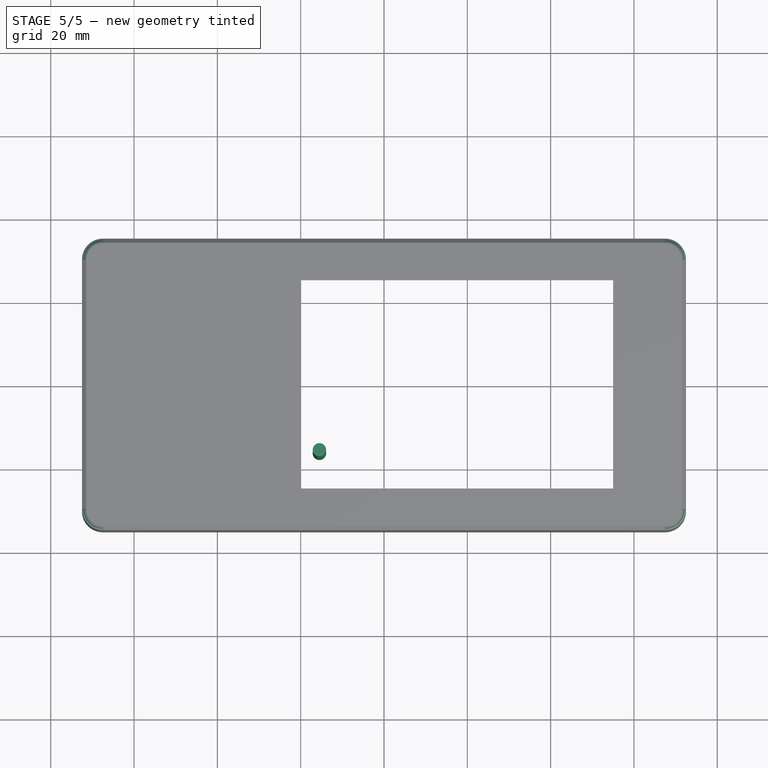
[diagram: stage 5 of 5 — top view after this stage's code; geometry added in this stage tinted green]
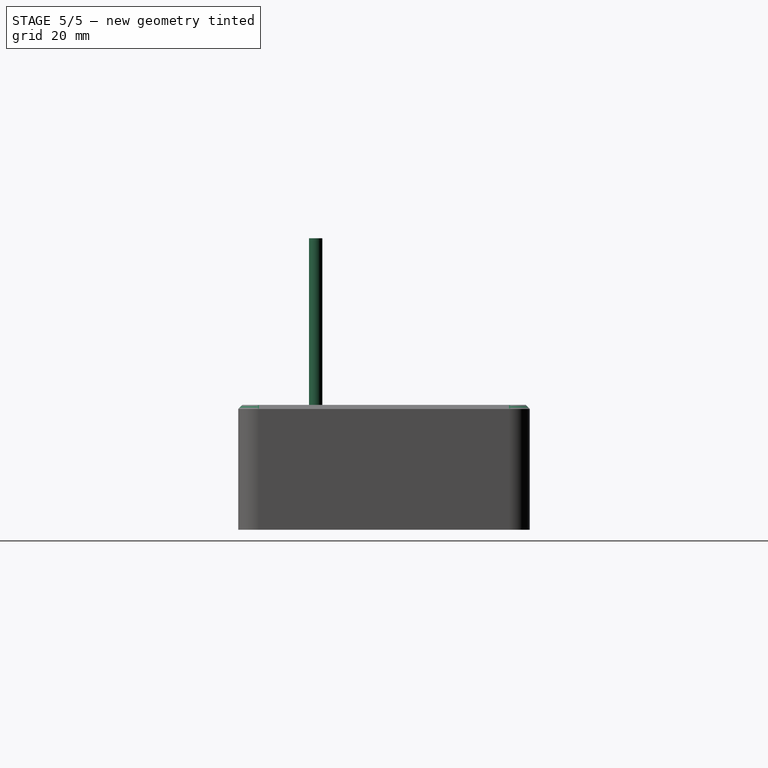
[diagram: stage 5 of 5 — right view after this stage's code; geometry added in this stage tinted green]
FEATURE [Part::Cylinder] Cylinder  label="screw"
  Angle = 360
  Height = 50
  Placement = pos=(-15.5,-16.4,-10) rot=(0,0,1;0rad)
  Radius = 1.6
FEATURE [PartDesign::Chamfer] Chamfer002
  Size = 0.4
FEATURE [PartDesign::Chamfer] Chamfer
  Base = -> Cut [Edge15]
  Size = 1
FEATURE [PartDesign::Chamfer] Chamfer003
  Base = -> Chamfer [Edge182,Edge171,Edge281,Edge270]
  Size = 2.99
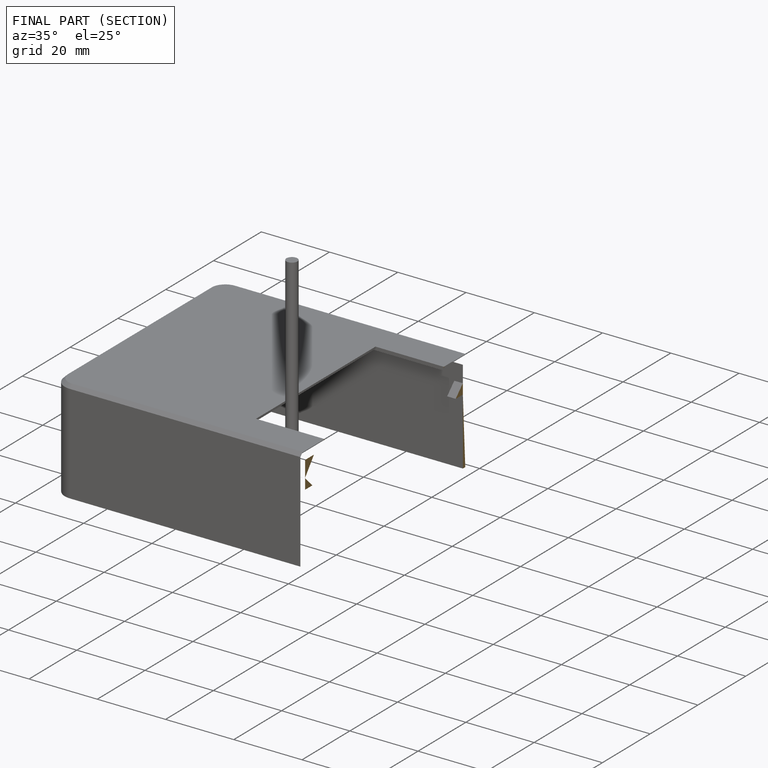
[diagram: finished part — half-section view (interior)]
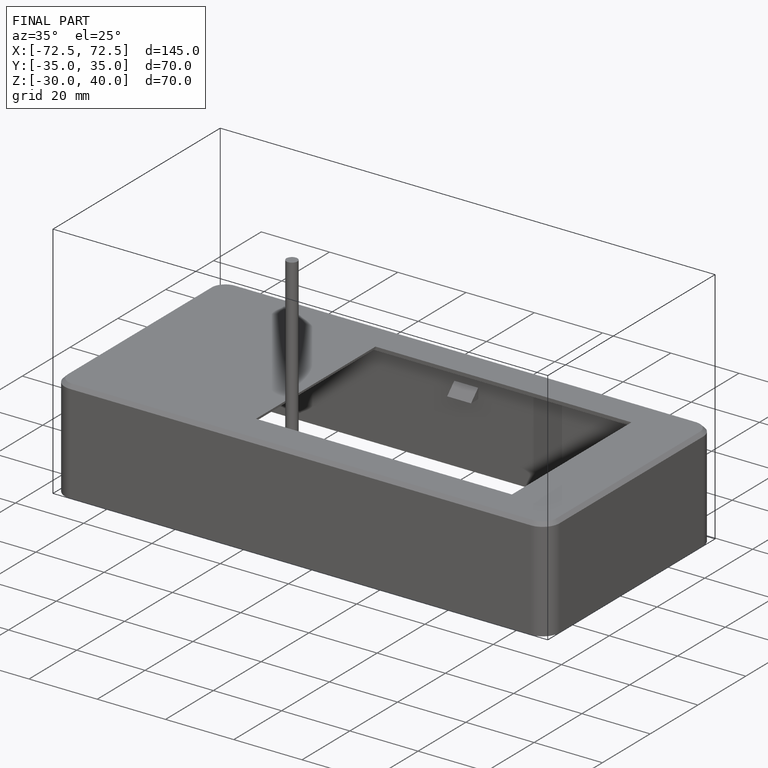
[diagram: finished part — iso view with bounding-box wireframe]
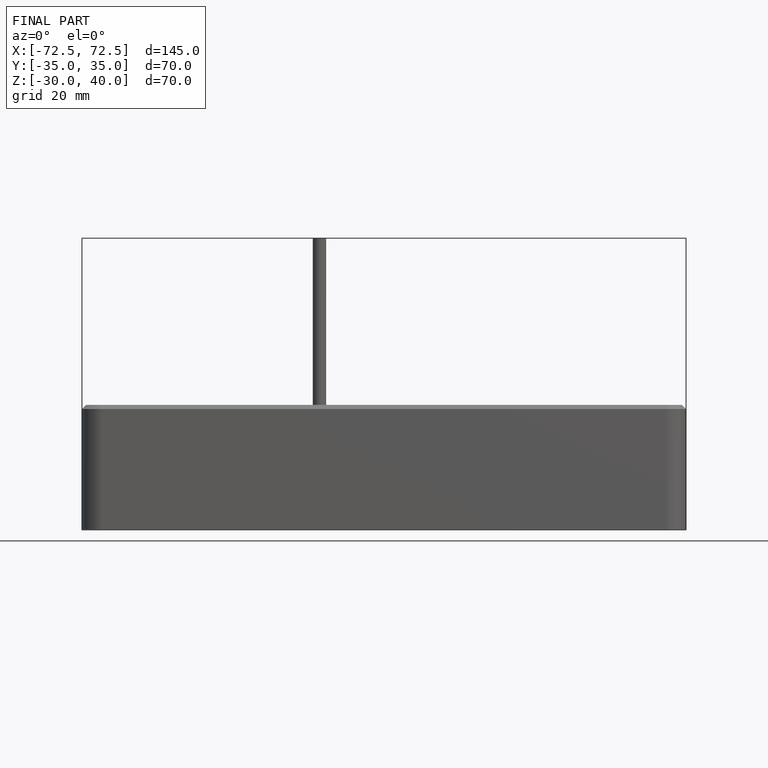
[diagram: finished part — front view with bounding-box wireframe]
